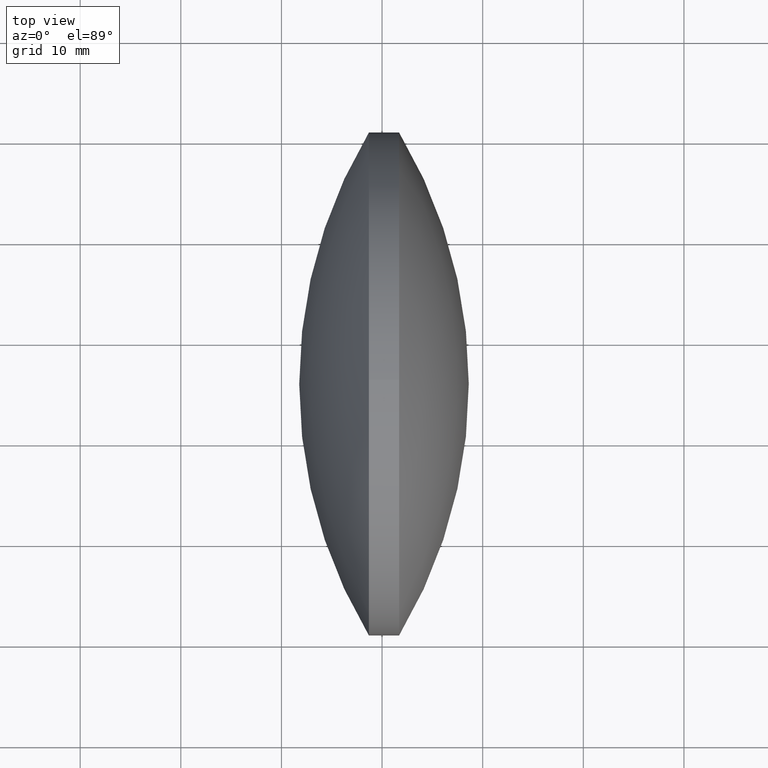
[diagram: clean part render]
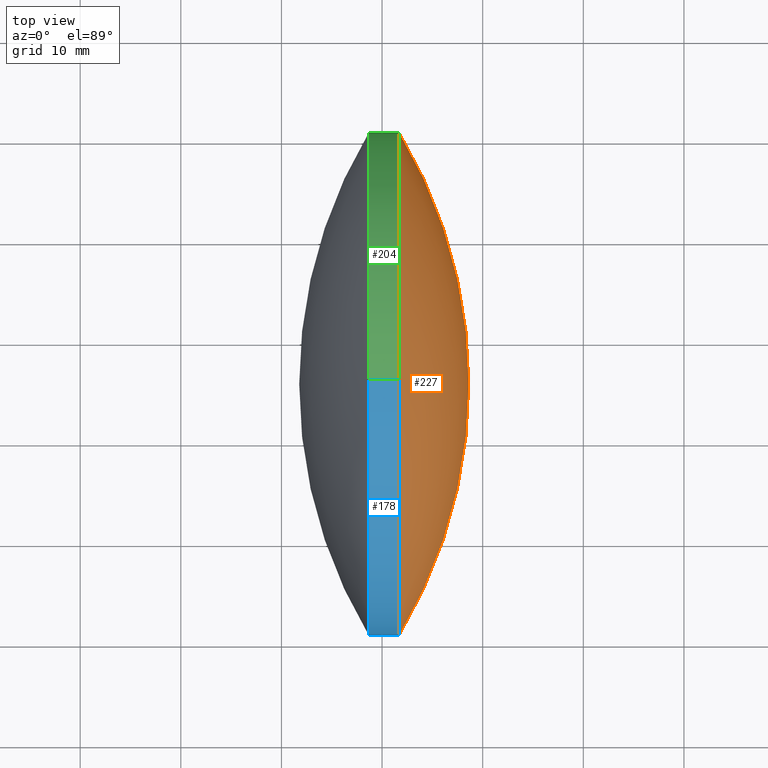
[diagram: same view with three faces highlighted in distinct colors, each labeled with its STEP entity id]
A machine part, top view with three faces highlighted in distinct colors.
Their STEP definitions:

[orange] entity #227 — the highlighted spherical surface has radius 48.5889 mm.
#4 = AXIS2_PLACEMENT_3D ( 'NONE', #332, #148, #183 ) ;
#6 = CARTESIAN_POINT ( 'NONE',  ( 130.0294410414005600, 95.70100988816007300, 0.0000000000000000000 ) ) ;
#25 = CIRCLE ( 'NONE', #137, 25.00000000000025900 ) ;
#27 = ORIENTED_EDGE ( 'NONE', *, *, #253, .T. ) ;
#43 = ORIENTED_EDGE ( 'NONE', *, *, #150, .F. ) ;
#73 = SPHERICAL_SURFACE ( 'NONE', #110, 48.58885379061425900 ) ;
#76 = AXIS2_PLACEMENT_3D ( 'NONE', #269, #174, #147 ) ;
#86 = CARTESIAN_POINT ( 'NONE',  ( 171.6932948320147700, 70.70100988815981700, -3.061616997868414600E-015 ) ) ;
#87 = DIRECTION ( 'NONE',  ( -1.000000000000000000, -0.0000000000000000000, -0.0000000000000000000 ) ) ;
#90 = DIRECTION ( 'NONE',  ( -0.0000000000000000000, 0.0000000000000000000, -1.000000000000000000 ) ) ;
#91 = DIRECTION ( 'NONE',  ( 0.0000000000000000000, 0.0000000000000000000, 1.000000000000000000 ) ) ;
#99 = ORIENTED_EDGE ( 'NONE', *, *, #262, .F. ) ;
#110 = AXIS2_PLACEMENT_3D ( 'NONE', #6, #90, #250 ) ;
#134 = CIRCLE ( 'NONE', #4, 48.58885379061425900 ) ;
#137 = AXIS2_PLACEMENT_3D ( 'NONE', #226, #87, #91 ) ;
#143 = CIRCLE ( 'NONE', #197, 25.00000000000025900 ) ;
#147 = DIRECTION ( 'NONE',  ( 0.0000000000000000000, 1.000000000000000000, 1.224646799147353200E-016 ) ) ;
#148 = DIRECTION ( 'NONE',  ( -0.0000000000000000000, 0.0000000000000000000, 1.000000000000000000 ) ) ;
#150 = EDGE_CURVE ( 'NONE', #281, #331, #299, .T. ) ;
#154 = EDGE_CURVE ( 'NONE', #317, #285, #143, .T. ) ;
#155 = FACE_OUTER_BOUND ( 'NONE', #307, .T. ) ;
#174 = DIRECTION ( 'NONE',  ( 0.0000000000000000000, 1.224646799147353200E-016, -1.000000000000000000 ) ) ;
#180 = CARTESIAN_POINT ( 'NONE',  ( 178.6182948320148400, 95.70100988816007300, 0.0000000000000000000 ) ) ;
#183 = DIRECTION ( 'NONE',  ( 1.000000000000000000, 0.0000000000000000000, 0.0000000000000000000 ) ) ;
#196 = DIRECTION ( 'NONE',  ( 0.0000000000000000000, 0.0000000000000000000, 1.000000000000000000 ) ) ;
#197 = AXIS2_PLACEMENT_3D ( 'NONE', #328, #321, #196 ) ;
#201 = CARTESIAN_POINT ( 'NONE',  ( 171.6932948320147700, 95.70100988816007300, 25.00000000000025900 ) ) ;
#226 = CARTESIAN_POINT ( 'NONE',  ( 171.6932948320147700, 95.70100988816007300, 0.0000000000000000000 ) ) ;
#227 = ADVANCED_FACE ( 'NONE', ( #155 ), #73, .T. ) ;
#250 = DIRECTION ( 'NONE',  ( 0.0000000000000000000, 1.000000000000000000, 0.0000000000000000000 ) ) ;
#253 = EDGE_CURVE ( 'NONE', #281, #285, #134, .T. ) ;
#262 = EDGE_CURVE ( 'NONE', #331, #317, #25, .T. ) ;
#269 = CARTESIAN_POINT ( 'NONE',  ( 130.0294410414005600, 95.70100988816007300, 0.0000000000000000000 ) ) ;
#281 = VERTEX_POINT ( 'NONE', #180 ) ;
#285 = VERTEX_POINT ( 'NONE', #301 ) ;
#299 = CIRCLE ( 'NONE', #76, 48.58885379061425900 ) ;
#301 = CARTESIAN_POINT ( 'NONE',  ( 171.6932948320147700, 120.7010098881603300, 0.0000000000000000000 ) ) ;
#307 = EDGE_LOOP ( 'NONE', ( #43, #27, #315, #99 ) ) ;
#315 = ORIENTED_EDGE ( 'NONE', *, *, #154, .F. ) ;
#317 = VERTEX_POINT ( 'NONE', #201 ) ;
#321 = DIRECTION ( 'NONE',  ( -1.000000000000000000, -0.0000000000000000000, -0.0000000000000000000 ) ) ;
#328 = CARTESIAN_POINT ( 'NONE',  ( 171.6932948320147700, 95.70100988816007300, 0.0000000000000000000 ) ) ;
#331 = VERTEX_POINT ( 'NONE', #86 ) ;
#332 = CARTESIAN_POINT ( 'NONE',  ( 130.0294410414005600, 95.70100988816007300, 0.0000000000000000000 ) ) ;

[blue] entity #178 — the highlighted cylindrical surface (partial cylindrical patch) has radius 25 mm, axis along (-1, -0, -0).
#5 = CIRCLE ( 'NONE', #46, 25.00000000000025900 ) ;
#17 = CIRCLE ( 'NONE', #220, 25.00000000000025900 ) ;
#25 = CIRCLE ( 'NONE', #137, 25.00000000000025900 ) ;
#31 = ORIENTED_EDGE ( 'NONE', *, *, #262, .T. ) ;
#36 = CARTESIAN_POINT ( 'NONE',  ( 171.6932948320147700, 95.70100988816007300, 0.0000000000000000000 ) ) ;
#39 = CARTESIAN_POINT ( 'NONE',  ( 168.6932948320147400, 95.70100988816007300, 0.0000000000000000000 ) ) ;
#46 = AXIS2_PLACEMENT_3D ( 'NONE', #36, #124, #206 ) ;
#49 = AXIS2_PLACEMENT_3D ( 'NONE', #39, #228, #114 ) ;
#59 = DIRECTION ( 'NONE',  ( -1.000000000000000000, -0.0000000000000000000, -0.0000000000000000000 ) ) ;
#77 = VECTOR ( 'NONE', #176, 1000.000000000000000 ) ;
#82 = VERTEX_POINT ( 'NONE', #298 ) ;
#86 = CARTESIAN_POINT ( 'NONE',  ( 171.6932948320147700, 70.70100988815981700, -3.061616997868414600E-015 ) ) ;
#87 = DIRECTION ( 'NONE',  ( -1.000000000000000000, -0.0000000000000000000, -0.0000000000000000000 ) ) ;
#91 = DIRECTION ( 'NONE',  ( 0.0000000000000000000, 0.0000000000000000000, 1.000000000000000000 ) ) ;
#92 = CARTESIAN_POINT ( 'NONE',  ( 168.6932948320147400, 95.70100988816007300, -25.00000000000025900 ) ) ;
#94 = CYLINDRICAL_SURFACE ( 'NONE', #97, 25.00000000000025900 ) ;
#97 = AXIS2_PLACEMENT_3D ( 'NONE', #115, #271, #142 ) ;
#114 = DIRECTION ( 'NONE',  ( 0.0000000000000000000, 0.0000000000000000000, 1.000000000000000000 ) ) ;
#115 = CARTESIAN_POINT ( 'NONE',  ( 157.9409552123159100, 95.70100988816007300, 0.0000000000000000000 ) ) ;
#116 = DIRECTION ( 'NONE',  ( 0.0000000000000000000, 0.0000000000000000000, 1.000000000000000000 ) ) ;
#118 = CARTESIAN_POINT ( 'NONE',  ( 168.6932948320147400, 95.70100988816007300, 25.00000000000025900 ) ) ;
#120 = CARTESIAN_POINT ( 'NONE',  ( 168.6932948320147400, 95.70100988816007300, 0.0000000000000000000 ) ) ;
#124 = DIRECTION ( 'NONE',  ( -1.000000000000000000, -0.0000000000000000000, -0.0000000000000000000 ) ) ;
#129 = EDGE_LOOP ( 'NONE', ( #254, #293, #31, #190, #135, #344 ) ) ;
#135 = ORIENTED_EDGE ( 'NONE', *, *, #287, .F. ) ;
#137 = AXIS2_PLACEMENT_3D ( 'NONE', #226, #87, #91 ) ;
#142 = DIRECTION ( 'NONE',  ( 0.0000000000000000000, 0.0000000000000000000, 1.000000000000000000 ) ) ;
#176 = DIRECTION ( 'NONE',  ( -1.000000000000000000, -0.0000000000000000000, -0.0000000000000000000 ) ) ;
#178 = ADVANCED_FACE ( 'NONE', ( #199 ), #94, .T. ) ;
#182 = LINE ( 'NONE', #330, #77 ) ;
#190 = ORIENTED_EDGE ( 'NONE', *, *, #327, .T. ) ;
#194 = VERTEX_POINT ( 'NONE', #323 ) ;
#199 = FACE_OUTER_BOUND ( 'NONE', #129, .T. ) ;
#201 = CARTESIAN_POINT ( 'NONE',  ( 171.6932948320147700, 95.70100988816007300, 25.00000000000025900 ) ) ;
#206 = DIRECTION ( 'NONE',  ( 0.0000000000000000000, 0.0000000000000000000, 1.000000000000000000 ) ) ;
#220 = AXIS2_PLACEMENT_3D ( 'NONE', #120, #59, #116 ) ;
#226 = CARTESIAN_POINT ( 'NONE',  ( 171.6932948320147700, 95.70100988816007300, 0.0000000000000000000 ) ) ;
#228 = DIRECTION ( 'NONE',  ( -1.000000000000000000, -0.0000000000000000000, -0.0000000000000000000 ) ) ;
#246 = VERTEX_POINT ( 'NONE', #92 ) ;
#247 = EDGE_CURVE ( 'NONE', #246, #194, #17, .T. ) ;
#252 = VECTOR ( 'NONE', #296, 1000.000000000000000 ) ;
#254 = ORIENTED_EDGE ( 'NONE', *, *, #280, .F. ) ;
#262 = EDGE_CURVE ( 'NONE', #331, #317, #25, .T. ) ;
#263 = CIRCLE ( 'NONE', #49, 25.00000000000025900 ) ;
#270 = VERTEX_POINT ( 'NONE', #118 ) ;
#271 = DIRECTION ( 'NONE',  ( -1.000000000000000000, -0.0000000000000000000, -0.0000000000000000000 ) ) ;
#280 = EDGE_CURVE ( 'NONE', #82, #246, #182, .T. ) ;
#287 = EDGE_CURVE ( 'NONE', #194, #270, #263, .T. ) ;
#293 = ORIENTED_EDGE ( 'NONE', *, *, #335, .T. ) ;
#296 = DIRECTION ( 'NONE',  ( -1.000000000000000000, -0.0000000000000000000, -0.0000000000000000000 ) ) ;
#298 = CARTESIAN_POINT ( 'NONE',  ( 171.6932948320147700, 95.70100988816007300, -25.00000000000025900 ) ) ;
#300 = CARTESIAN_POINT ( 'NONE',  ( 157.9409552123159100, 95.70100988816007300, 25.00000000000025900 ) ) ;
#317 = VERTEX_POINT ( 'NONE', #201 ) ;
#323 = CARTESIAN_POINT ( 'NONE',  ( 168.6932948320147400, 70.70100988815980300, -3.061616997868414600E-015 ) ) ;
#327 = EDGE_CURVE ( 'NONE', #317, #270, #339, .T. ) ;
#330 = CARTESIAN_POINT ( 'NONE',  ( 157.9409552123159100, 95.70100988816007300, -25.00000000000025900 ) ) ;
#331 = VERTEX_POINT ( 'NONE', #86 ) ;
#335 = EDGE_CURVE ( 'NONE', #82, #331, #5, .T. ) ;
#339 = LINE ( 'NONE', #300, #252 ) ;
#344 = ORIENTED_EDGE ( 'NONE', *, *, #247, .F. ) ;

[green] entity #204 — the highlighted cylindrical surface (partial cylindrical patch) has radius 25 mm, axis along (-1, -0, -0).
#30 = DIRECTION ( 'NONE',  ( -1.000000000000000000, -0.0000000000000000000, -0.0000000000000000000 ) ) ;
#33 = DIRECTION ( 'NONE',  ( -1.000000000000000000, -0.0000000000000000000, -0.0000000000000000000 ) ) ;
#51 = FACE_OUTER_BOUND ( 'NONE', #52, .T. ) ;
#52 = EDGE_LOOP ( 'NONE', ( #57, #163, #123, #103, #139, #264 ) ) ;
#53 = CARTESIAN_POINT ( 'NONE',  ( 168.6932948320147400, 95.70100988816007300, 0.0000000000000000000 ) ) ;
#56 = EDGE_CURVE ( 'NONE', #270, #209, #106, .T. ) ;
#57 = ORIENTED_EDGE ( 'NONE', *, *, #78, .T. ) ;
#58 = DIRECTION ( 'NONE',  ( 0.0000000000000000000, 0.0000000000000000000, 1.000000000000000000 ) ) ;
#62 = DIRECTION ( 'NONE',  ( 0.0000000000000000000, 0.0000000000000000000, 1.000000000000000000 ) ) ;
#74 = CYLINDRICAL_SURFACE ( 'NONE', #211, 25.00000000000025900 ) ;
#77 = VECTOR ( 'NONE', #176, 1000.000000000000000 ) ;
#78 = EDGE_CURVE ( 'NONE', #285, #82, #236, .T. ) ;
#81 = CARTESIAN_POINT ( 'NONE',  ( 157.9409552123159100, 95.70100988816007300, 0.0000000000000000000 ) ) ;
#82 = VERTEX_POINT ( 'NONE', #298 ) ;
#89 = CIRCLE ( 'NONE', #294, 25.00000000000025900 ) ;
#92 = CARTESIAN_POINT ( 'NONE',  ( 168.6932948320147400, 95.70100988816007300, -25.00000000000025900 ) ) ;
#103 = ORIENTED_EDGE ( 'NONE', *, *, #56, .F. ) ;
#106 = CIRCLE ( 'NONE', #340, 25.00000000000025900 ) ;
#118 = CARTESIAN_POINT ( 'NONE',  ( 168.6932948320147400, 95.70100988816007300, 25.00000000000025900 ) ) ;
#123 = ORIENTED_EDGE ( 'NONE', *, *, #237, .F. ) ;
#139 = ORIENTED_EDGE ( 'NONE', *, *, #327, .F. ) ;
#143 = CIRCLE ( 'NONE', #197, 25.00000000000025900 ) ;
#154 = EDGE_CURVE ( 'NONE', #317, #285, #143, .T. ) ;
#163 = ORIENTED_EDGE ( 'NONE', *, *, #280, .T. ) ;
#170 = AXIS2_PLACEMENT_3D ( 'NONE', #222, #245, #295 ) ;
#176 = DIRECTION ( 'NONE',  ( -1.000000000000000000, -0.0000000000000000000, -0.0000000000000000000 ) ) ;
#182 = LINE ( 'NONE', #330, #77 ) ;
#196 = DIRECTION ( 'NONE',  ( 0.0000000000000000000, 0.0000000000000000000, 1.000000000000000000 ) ) ;
#197 = AXIS2_PLACEMENT_3D ( 'NONE', #328, #321, #196 ) ;
#201 = CARTESIAN_POINT ( 'NONE',  ( 171.6932948320147700, 95.70100988816007300, 25.00000000000025900 ) ) ;
#202 = CARTESIAN_POINT ( 'NONE',  ( 168.6932948320147400, 95.70100988816007300, 0.0000000000000000000 ) ) ;
#204 = ADVANCED_FACE ( 'NONE', ( #51 ), #74, .T. ) ;
#209 = VERTEX_POINT ( 'NONE', #218 ) ;
#211 = AXIS2_PLACEMENT_3D ( 'NONE', #81, #30, #290 ) ;
#218 = CARTESIAN_POINT ( 'NONE',  ( 168.6932948320147400, 120.7010098881603300, 0.0000000000000000000 ) ) ;
#222 = CARTESIAN_POINT ( 'NONE',  ( 171.6932948320147700, 95.70100988816007300, 0.0000000000000000000 ) ) ;
#224 = DIRECTION ( 'NONE',  ( -1.000000000000000000, -0.0000000000000000000, -0.0000000000000000000 ) ) ;
#236 = CIRCLE ( 'NONE', #170, 25.00000000000025900 ) ;
#237 = EDGE_CURVE ( 'NONE', #209, #246, #89, .T. ) ;
#245 = DIRECTION ( 'NONE',  ( -1.000000000000000000, -0.0000000000000000000, -0.0000000000000000000 ) ) ;
#246 = VERTEX_POINT ( 'NONE', #92 ) ;
#252 = VECTOR ( 'NONE', #296, 1000.000000000000000 ) ;
#264 = ORIENTED_EDGE ( 'NONE', *, *, #154, .T. ) ;
#270 = VERTEX_POINT ( 'NONE', #118 ) ;
#280 = EDGE_CURVE ( 'NONE', #82, #246, #182, .T. ) ;
#285 = VERTEX_POINT ( 'NONE', #301 ) ;
#290 = DIRECTION ( 'NONE',  ( 0.0000000000000000000, 0.0000000000000000000, 1.000000000000000000 ) ) ;
#294 = AXIS2_PLACEMENT_3D ( 'NONE', #202, #33, #62 ) ;
#295 = DIRECTION ( 'NONE',  ( 0.0000000000000000000, 0.0000000000000000000, 1.000000000000000000 ) ) ;
#296 = DIRECTION ( 'NONE',  ( -1.000000000000000000, -0.0000000000000000000, -0.0000000000000000000 ) ) ;
#298 = CARTESIAN_POINT ( 'NONE',  ( 171.6932948320147700, 95.70100988816007300, -25.00000000000025900 ) ) ;
#300 = CARTESIAN_POINT ( 'NONE',  ( 157.9409552123159100, 95.70100988816007300, 25.00000000000025900 ) ) ;
#301 = CARTESIAN_POINT ( 'NONE',  ( 171.6932948320147700, 120.7010098881603300, 0.0000000000000000000 ) ) ;
#317 = VERTEX_POINT ( 'NONE', #201 ) ;
#321 = DIRECTION ( 'NONE',  ( -1.000000000000000000, -0.0000000000000000000, -0.0000000000000000000 ) ) ;
#327 = EDGE_CURVE ( 'NONE', #317, #270, #339, .T. ) ;
#328 = CARTESIAN_POINT ( 'NONE',  ( 171.6932948320147700, 95.70100988816007300, 0.0000000000000000000 ) ) ;
#330 = CARTESIAN_POINT ( 'NONE',  ( 157.9409552123159100, 95.70100988816007300, -25.00000000000025900 ) ) ;
#339 = LINE ( 'NONE', #300, #252 ) ;
#340 = AXIS2_PLACEMENT_3D ( 'NONE', #53, #224, #58 ) ;